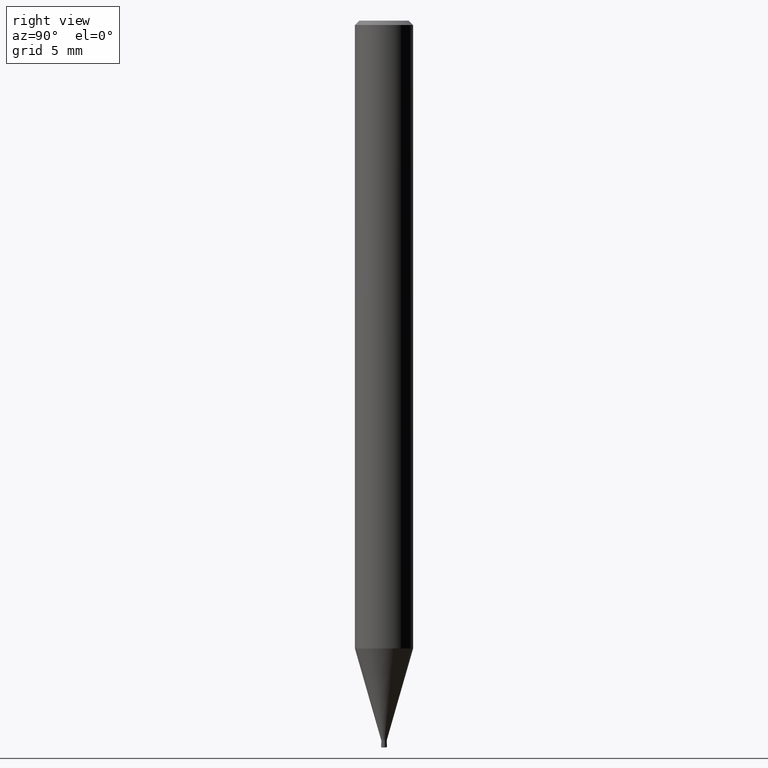
[diagram: clean part render]
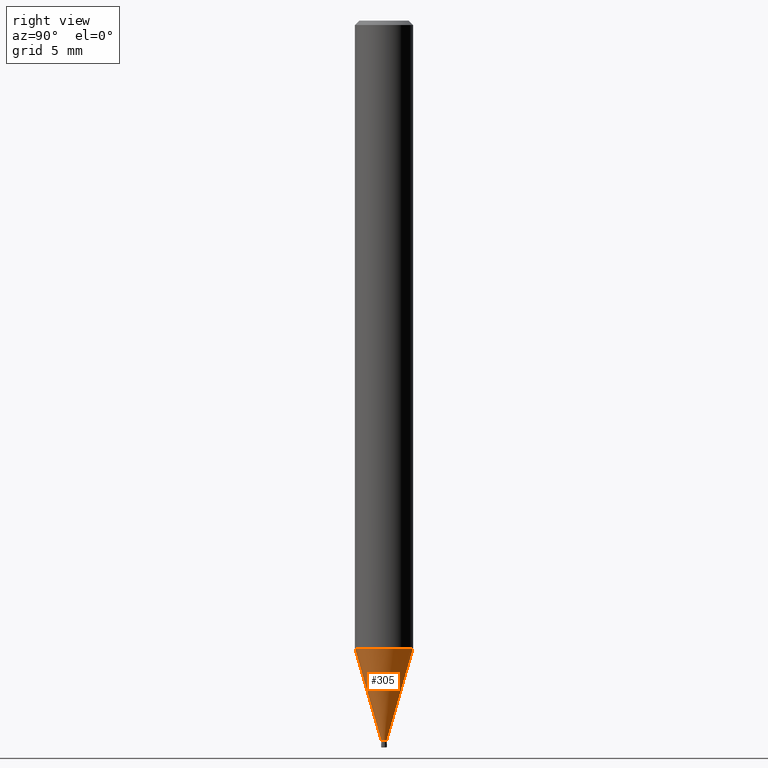
[diagram: same view with one face highlighted and labeled with its STEP entity id]
A machine part, right view. The second image highlights one B-rep face of the part: STEP entity #305.
In plain terms, the highlighted conical surface has half-angle 15.999 deg.
Its self-contained STEP definition (entity closure, byte-faithful):
#165=EDGE_CURVE('',#235,#195,#405,.T.);
#195=VERTEX_POINT('',#441);
#199=EDGE_CURVE('',#331,#349,#445,.T.);
#235=VERTEX_POINT('',#485);
#287=EDGE_CURVE('',#235,#349,#541,.T.);
#305=ADVANCED_FACE('',(#561),#562,.T.);
#319=EDGE_CURVE('',#195,#331,#578,.T.);
#331=VERTEX_POINT('',#592);
#349=VERTEX_POINT('',#612);
#405=LINE('',#670,#671);
#441=CARTESIAN_POINT('',(0.0,0.19245,-49.49));
#445=LINE('',#717,#718);
#485=CARTESIAN_POINT('',(0.0,1.99995,-43.186));
#541=CIRCLE('',#841,1.99995);
#561=FACE_OUTER_BOUND('',#866,.T.);
#562=CONICAL_SURFACE('',#867,1.0962,0.279231732547063);
#578=CIRCLE('',#886,0.19245);
#592=CARTESIAN_POINT('',(2.35675492793117E-017,-0.19245,-49.49));
#612=CARTESIAN_POINT('',(2.44915147732706E-016,-1.99995,-43.186));
#670=CARTESIAN_POINT('',(-1.34241348506009E-016,1.0962,-46.338));
#671=VECTOR('',#991,1.0);
#717=CARTESIAN_POINT('',(1.34241348506009E-016,-1.0962,-46.338));
#718=VECTOR('',#1050,1.0);
#841=AXIS2_PLACEMENT_3D('',#1167,#1168,#1169);
#866=EDGE_LOOP('',(#1197,#1198,#1199,#1200));
#867=AXIS2_PLACEMENT_3D('',#1201,#1202,#1203);
#886=AXIS2_PLACEMENT_3D('',#1218,#1219,#1220);
#991=DIRECTION('',(3.375225981805E-017,-0.275617219465657,-0.961267469715906));
#1050=DIRECTION('',(3.375225981805E-017,-0.275617219465657,0.961267469715906));
#1167=CARTESIAN_POINT('',(0.0,0.0,-43.186));
#1168=DIRECTION('',(0.0,0.0,-1.0));
#1169=DIRECTION('',(0.0,1.0,0.0));
#1197=ORIENTED_EDGE('',*,*,#165,.F.);
#1198=ORIENTED_EDGE('',*,*,#287,.T.);
#1199=ORIENTED_EDGE('',*,*,#199,.F.);
#1200=ORIENTED_EDGE('',*,*,#319,.F.);
#1201=CARTESIAN_POINT('',(0.0,0.0,-46.338));
#1202=DIRECTION('',(-0.0,-0.0,1.0));
#1203=DIRECTION('',(0.0,1.0,0.0));
#1218=CARTESIAN_POINT('',(0.0,0.0,-49.49));
#1219=DIRECTION('',(0.0,0.0,-1.0));
#1220=DIRECTION('',(0.0,1.0,0.0));